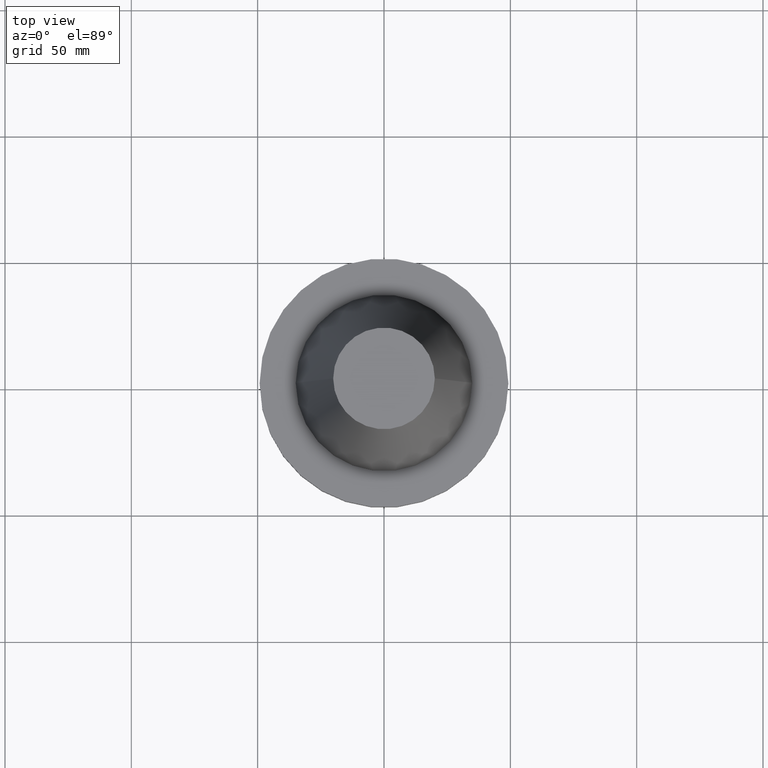
[diagram: clean part render]
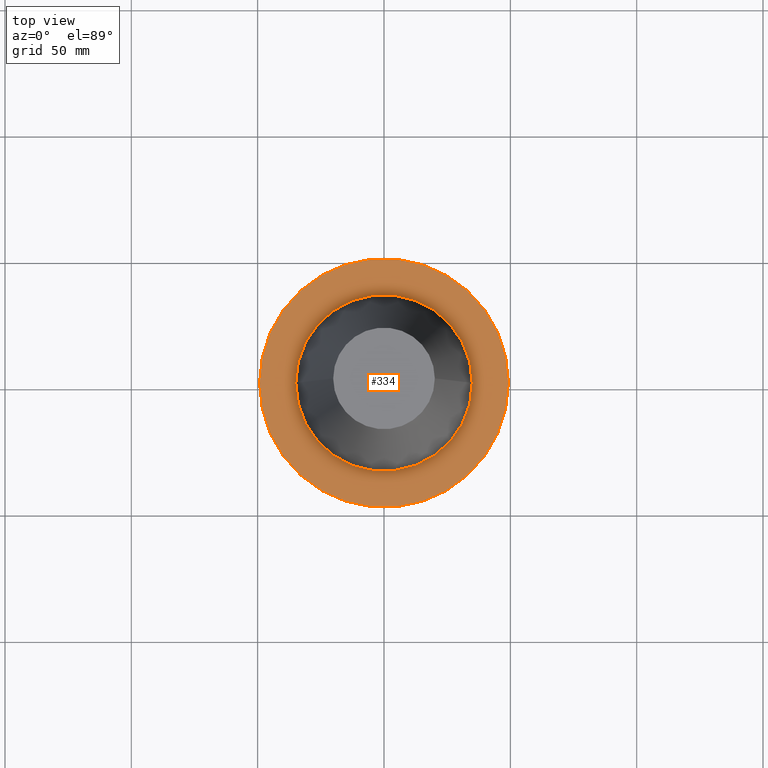
[diagram: same view with one face highlighted and labeled with its STEP entity id]
A machine part, top view. The second image highlights one B-rep face of the part: STEP entity #334.
In plain terms, the highlighted planar face has unit normal (0, 0, -1).
Its self-contained STEP definition (entity closure, byte-faithful):
#9 = CARTESIAN_POINT ( 'NONE',  ( -49.21499999999999631, 6.027099222003697826E-15, -1.499999999999987566 ) ) ;
#15 = CARTESIAN_POINT ( 'NONE',  ( 0.000000000000000000, 49.21499999999999631, -1.499999999999992895 ) ) ;
#25 = FACE_BOUND ( 'NONE', #214, .T. ) ;
#28 = ORIENTED_EDGE ( 'NONE', *, *, #268, .T. ) ;
#80 = FACE_OUTER_BOUND ( 'NONE', #475, .T. ) ;
#113 = EDGE_CURVE ( 'NONE', #754, #250, #137, .T. ) ;
#137 = CIRCLE ( 'NONE', #249, 34.92499999999999005 ) ;
#150 = DIRECTION ( 'NONE',  ( -1.000000000000000000, 0.000000000000000000, -0.000000000000000000 ) ) ;
#214 = EDGE_LOOP ( 'NONE', ( #638, #396 ) ) ;
#220 = CARTESIAN_POINT ( 'NONE',  ( 0.000000000000000000, 0.000000000000000000, -1.499999999999987566 ) ) ;
#233 = CIRCLE ( 'NONE', #343, 49.21499999999999631 ) ;
#249 = AXIS2_PLACEMENT_3D ( 'NONE', #220, #680, #812 ) ;
#250 = VERTEX_POINT ( 'NONE', #848 ) ;
#253 = DIRECTION ( 'NONE',  ( -0.000000000000000000, -0.000000000000000000, 1.000000000000000000 ) ) ;
#268 = EDGE_CURVE ( 'NONE', #810, #722, #233, .T. ) ;
#279 = DIRECTION ( 'NONE',  ( -0.000000000000000000, -0.000000000000000000, 1.000000000000000000 ) ) ;
#327 = DIRECTION ( 'NONE',  ( 1.000000000000000000, 0.000000000000000000, 0.000000000000000000 ) ) ;
#334 = ADVANCED_FACE ( 'NONE', ( #25, #80 ), #743, .F. ) ;
#343 = AXIS2_PLACEMENT_3D ( 'NONE', #806, #279, #808 ) ;
#384 = CARTESIAN_POINT ( 'NONE',  ( 0.000000000000000000, 0.000000000000000000, -1.499999999999987566 ) ) ;
#392 = AXIS2_PLACEMENT_3D ( 'NONE', #384, #253, #327 ) ;
#396 = ORIENTED_EDGE ( 'NONE', *, *, #113, .F. ) ;
#451 = AXIS2_PLACEMENT_3D ( 'NONE', #15, #737, #150 ) ;
#454 = DIRECTION ( 'NONE',  ( 1.000000000000000000, 0.000000000000000000, 0.000000000000000000 ) ) ;
#475 = EDGE_LOOP ( 'NONE', ( #542, #28 ) ) ;
#503 = CIRCLE ( 'NONE', #629, 34.92499999999999005 ) ;
#517 = CARTESIAN_POINT ( 'NONE',  ( 49.21499999999999631, 0.000000000000000000, -1.499999999999987566 ) ) ;
#520 = CARTESIAN_POINT ( 'NONE',  ( -34.92499999999999005, 4.277078946022130098E-15, -1.499999999999987566 ) ) ;
#542 = ORIENTED_EDGE ( 'NONE', *, *, #597, .T. ) ;
#592 = CARTESIAN_POINT ( 'NONE',  ( 0.000000000000000000, 0.000000000000000000, -1.499999999999987566 ) ) ;
#597 = EDGE_CURVE ( 'NONE', #722, #810, #615, .T. ) ;
#615 = CIRCLE ( 'NONE', #392, 49.21499999999999631 ) ;
#629 = AXIS2_PLACEMENT_3D ( 'NONE', #592, #651, #454 ) ;
#635 = EDGE_CURVE ( 'NONE', #250, #754, #503, .T. ) ;
#638 = ORIENTED_EDGE ( 'NONE', *, *, #635, .F. ) ;
#651 = DIRECTION ( 'NONE',  ( -0.000000000000000000, -0.000000000000000000, 1.000000000000000000 ) ) ;
#680 = DIRECTION ( 'NONE',  ( -0.000000000000000000, -0.000000000000000000, 1.000000000000000000 ) ) ;
#722 = VERTEX_POINT ( 'NONE', #517 ) ;
#737 = DIRECTION ( 'NONE',  ( 0.000000000000000000, 0.000000000000000000, -1.000000000000000000 ) ) ;
#743 = PLANE ( 'NONE',  #451 ) ;
#754 = VERTEX_POINT ( 'NONE', #520 ) ;
#806 = CARTESIAN_POINT ( 'NONE',  ( 0.000000000000000000, 0.000000000000000000, -1.499999999999987566 ) ) ;
#808 = DIRECTION ( 'NONE',  ( 1.000000000000000000, 0.000000000000000000, 0.000000000000000000 ) ) ;
#810 = VERTEX_POINT ( 'NONE', #9 ) ;
#812 = DIRECTION ( 'NONE',  ( 1.000000000000000000, 0.000000000000000000, 0.000000000000000000 ) ) ;
#848 = CARTESIAN_POINT ( 'NONE',  ( 34.92499999999999005, 0.000000000000000000, -1.499999999999987566 ) ) ;